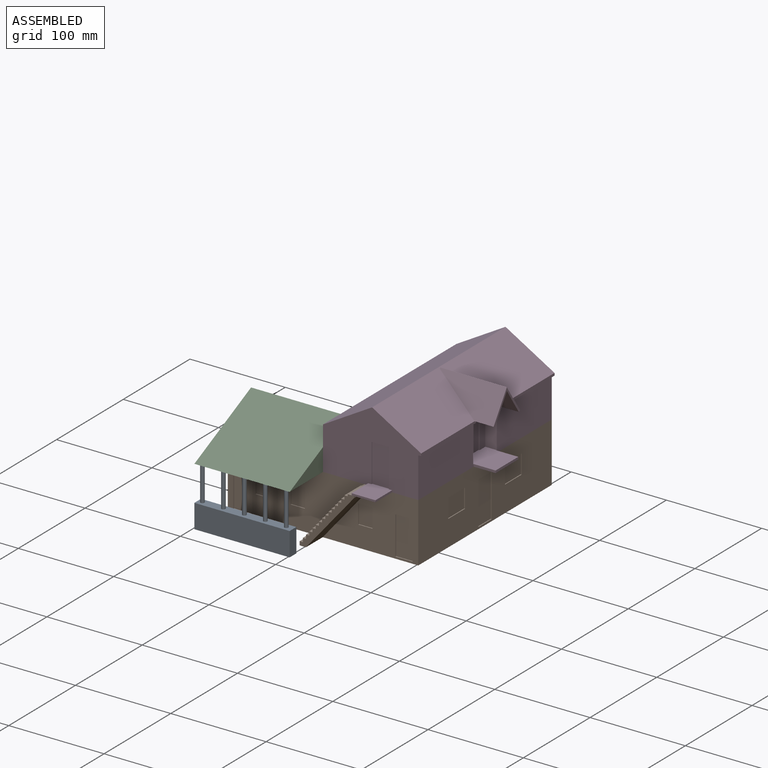
[diagram: assembled view]
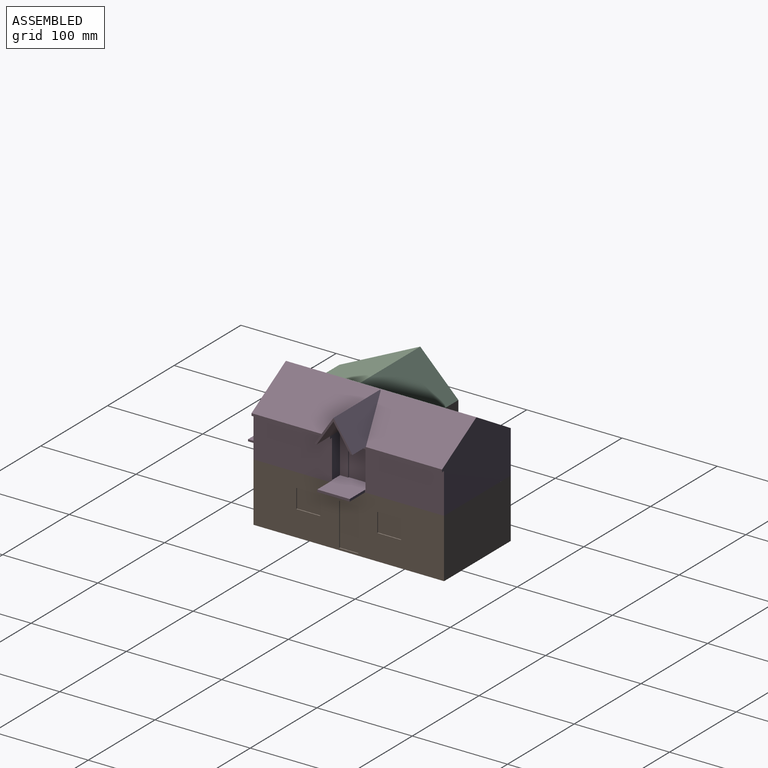
[diagram: assembled view, second angle]
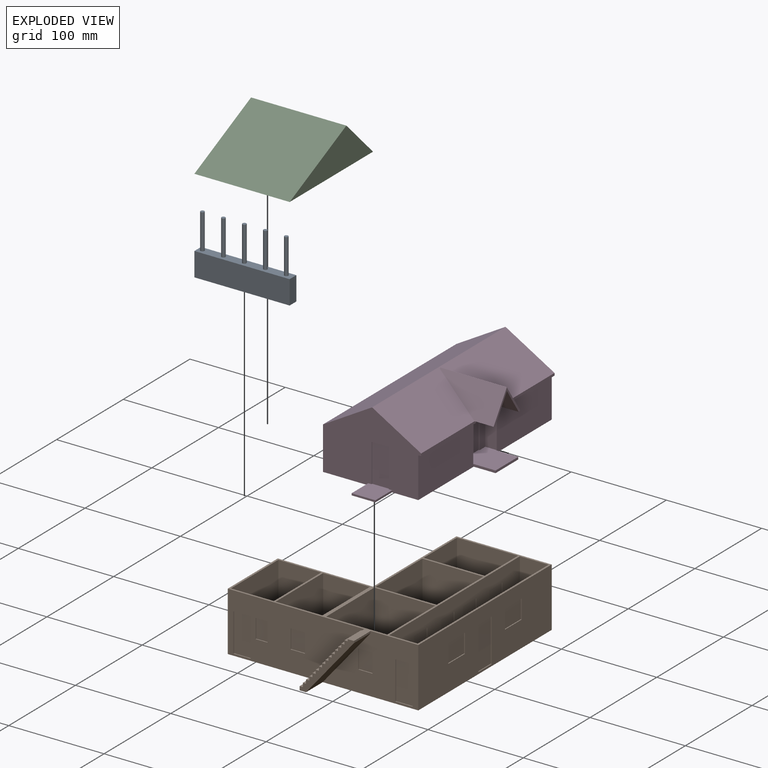
[diagram: exploded view]
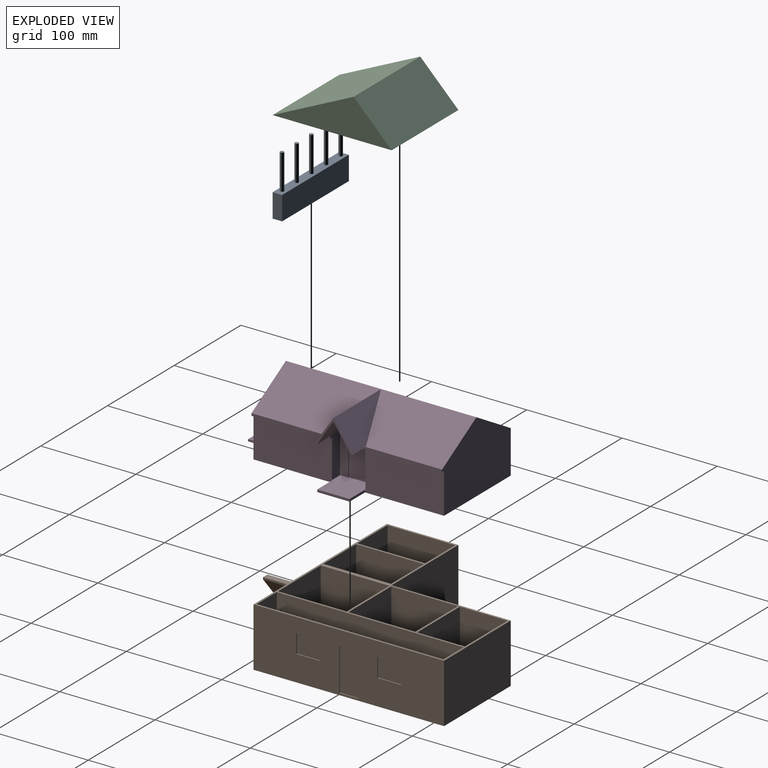
[diagram: exploded view, second angle]
ASSEMBLY  parts=4 mates=3
PART A: 16 faces, bbox 100x10x62 mm
  f0: plane 25x10mm, normal (1,0,0), area 250mm2, adj f1,f3,f4,f5
  f1: plane 100x25mm, normal (0,1,0), area 2500mm2, adj f0,f2,f4,f5
  f2: plane 25x10mm, normal (-1,0,0), area 250mm2, adj f1,f3,f4,f5
  f3: plane 100x25mm, normal (0,-1,0), area 2500mm2, adj f0,f2,f4,f5
  f4: plane 100x10mm, normal (0,0,1), area 937.2mm2, adj f0,f1,f2,f3,f6,f8,f10,f12
  f5: plane 100x10mm, normal (0,0,-1), area 1000mm2, adj f0,f1,f2,f3
  f6: cylinder r=2mm len=37mm, axis (0,0,-1), area 465mm2, adj f4,f7
  f7: plane 4x4mm, normal (0,0,1), area 12.6mm2, adj f6
  f8: cylinder r=2mm len=37mm, axis (0,0,-1), area 465mm2, adj f4,f9
  f9: plane 4x4mm, normal (0,0,1), area 12.6mm2, adj f8
  f10: cylinder r=2mm len=37mm, axis (0,0,-1), area 465mm2, adj f4,f11
  f11: plane 4x4mm, normal (0,0,1), area 12.6mm2, adj f10
  f12: cylinder r=2mm len=37mm, axis (0,0,-1), area 465mm2, adj f4,f13
  f13: plane 4x4mm, normal (0,0,1), area 12.6mm2, adj f12
  f14: cylinder r=2mm len=37mm, axis (0,0,-1), area 465mm2, adj f4,f15
  f15: plane 4x4mm, normal (0,0,1), area 12.6mm2, adj f14
PART B: 149 faces, bbox 200x225x62 mm
  f0: plane 143.32x62mm, normal (0,-1,0), area 6004.9mm2, adj f1,f5,f6,f9,f10,f11,f44,f48
  f1: plane 75x62mm, normal (-1,0,0), area 4250mm2, adj f0,f39,f44,f48,f110,f111,f112,f113
  f2: plane 71x60mm, normal (-1,0,0), area 3360mm2, adj f30,f31,f44,f46,f106,f107,f108
  f3: plane 125x62mm, normal (-1,0,0), area 7600mm2, adj f38,f39,f44,f48,f101,f102,f103,f104
  f4: plane 200x62mm, normal (1,0,0), area 10500mm2, adj f19,f38,f44,f48,f86,f87,f88,f89
  f5: plane 20x1mm, normal (1,0,0), area 20mm2, adj f0,f67,f68,f85
  f6: plane 20x1mm, normal (-1,0,0), area 20mm2, adj f0,f67,f68,f85
  f7: plane 20x1mm, normal (1,0,0), area 20mm2, adj f19,f73,f74,f83
  f8: plane 20x1mm, normal (-1,0,0), area 20mm2, adj f19,f73,f74,f83
  f9: plane 18x1mm, normal (0,0,1), area 18mm2, adj f0,f10,f11,f82
  f10: plane 40x1mm, normal (1,0,0), area 40mm2, adj f0,f9,f75,f82
  f11: plane 40x1mm, normal (-1,0,0), area 40mm2, adj f0,f9,f75,f82
  f12: plane 18x1mm, normal (0,0,1), area 18mm2, adj f13,f14,f19,f81
  f13: plane 40x1mm, normal (1,0,0), area 40mm2, adj f12,f19,f66,f81
  f14: plane 40x1mm, normal (-1,0,0), area 40mm2, adj f12,f19,f66,f81
  f15: plane 64x50mm, normal (0,0,1), area 3200mm2, adj f22,f36,f37,f43
  f16: plane 70x64mm, normal (0,0,1), area 4480mm2, adj f21,f34,f35,f42
  f17: plane 196x31mm, normal (0,0,1), area 5940mm2, adj f23,f24,f25,f26,f49,f51,f52,f54
  f18: plane 64x60mm, normal (0,1,0), area 3840mm2, adj f20,f32,f44,f47
  f19: plane 100.31x62mm, normal (0,-1,0), area 3588.2mm2, adj f4,f7,f8,f12,f13,f14,f44,f48
  f20: plane 72x60mm, normal (-1,0,0), area 4320mm2, adj f18,f33,f44,f47
  f21: plane 70x60mm, normal (-1,0,0), area 4200mm2, adj f16,f35,f42,f44
  f22: plane 60x50mm, normal (-1,0,0), area 3000mm2, adj f15,f37,f43,f44
  f23: plane 196x60mm, normal (1,0,0), area 8260mm2, adj f17,f24,f26,f44,f49,f50,f51,f52
  f24: plane 60x30mm, normal (0,-1,0), area 1800mm2, adj f17,f23,f25,f44
  f25: plane 196x60mm, normal (-1,0,0), area 11760mm2, adj f17,f24,f26,f44
  f26: plane 60x30mm, normal (0,1,0), area 1800mm2, adj f17,f23,f25,f44
  f27: plane 60x49mm, normal (0,-1,0), area 2940mm2, adj f28,f40,f44,f45
  f28: plane 71x60mm, normal (-1,0,0), area 4260mm2, adj f27,f29,f44,f45
  f29: plane 60x49mm, normal (0,1,0), area 2940mm2, adj f28,f40,f44,f45
  f30: plane 60x45mm, normal (0,-1,0), area 2700mm2, adj f2,f41,f44,f46
  f31: plane 60x45mm, normal (0,1,0), area 2700mm2, adj f2,f41,f44,f46
  f32: plane 72x60mm, normal (1,0,0), area 4320mm2, adj f18,f33,f44,f47
  f33: plane 64x60mm, normal (0,-1,0), area 3840mm2, adj f20,f32,f44,f47
  f34: plane 70x60mm, normal (1,0,0), area 4200mm2, adj f16,f35,f42,f44
  f35: plane 64x60mm, normal (0,-1,0), area 3840mm2, adj f16,f21,f34,f44
  f36: plane 60x50mm, normal (1,0,0), area 3000mm2, adj f15,f37,f43,f44
  f37: plane 64x60mm, normal (0,-1,0), area 3840mm2, adj f15,f22,f36,f44
  f38: plane 100x62mm, normal (0,1,0), area 6200mm2, adj f3,f4,f44,f48
  f39: plane 100x62mm, normal (0,1,0), area 6200mm2, adj f1,f3,f44,f48
  f40: plane 71x60mm, normal (1,0,0), area 4260mm2, adj f27,f29,f44,f45
  f41: plane 71x60mm, normal (1,0,0), area 4260mm2, adj f30,f31,f44,f46
  f42: plane 64x60mm, normal (0,1,0), area 3840mm2, adj f16,f21,f34,f44
  f43: plane 64x60mm, normal (0,1,0), area 3840mm2, adj f15,f22,f36,f44
  f44: plane 225x200mm, normal (0,0,1), area 2825.8mm2, adj f0,f1,f2,f3,f4,f18,f19,f20
  f45: plane 71x49mm, normal (0,0,1), area 3479mm2, adj f27,f28,f29,f40
  f46: plane 71x46mm, normal (0,0,1), area 3215mm2, adj f2,f30,f31,f41,f107,f108,f109
  f47: plane 72x64mm, normal (0,0,1), area 4608mm2, adj f18,f20,f32,f33
  f48: plane 225x200mm, normal (0,0,-1), area 27667.8mm2, adj f0,f1,f3,f4,f19,f38,f39,f115
  f49: plane 45x1mm, normal (0,1,0), area 45mm2, adj f17,f23,f50,f77
  f50: plane 20x1mm, normal (0,0,-1), area 20mm2, adj f23,f49,f51,f77
  f51: plane 45x1mm, normal (0,-1,0), area 45mm2, adj f17,f23,f50,f77
  f52: plane 45x1mm, normal (0,1,0), area 45mm2, adj f17,f23,f53,f78
  f53: plane 20x1mm, normal (0,0,-1), area 20mm2, adj f23,f52,f54,f78
  f54: plane 45x1mm, normal (0,-1,0), area 45mm2, adj f17,f23,f53,f78
  f55: plane 20x1mm, normal (0,1,0), area 20mm2, adj f23,f56,f58,f80
  f56: plane 20x1mm, normal (0,0,-1), area 20mm2, adj f23,f55,f57,f80
  f57: plane 20x1mm, normal (0,-1,0), area 20mm2, adj f23,f56,f58,f80
  f58: plane 20x1mm, normal (0,0,1), area 20mm2, adj f23,f55,f57,f80
  f59: plane 45x1mm, normal (0,1,0), area 45mm2, adj f17,f23,f60,f76
  f60: plane 20x1mm, normal (0,0,-1), area 20mm2, adj f23,f59,f61,f76
  f61: plane 45x1mm, normal (0,-1,0), area 45mm2, adj f17,f23,f60,f76
  f62: plane 20x1mm, normal (0,1,0), area 20mm2, adj f23,f63,f65,f79
  f63: plane 20x1mm, normal (0,0,-1), area 20mm2, adj f23,f62,f64,f79
  f64: plane 20x1mm, normal (0,-1,0), area 20mm2, adj f23,f63,f65,f79
  f65: plane 20x1mm, normal (0,0,1), area 20mm2, adj f23,f62,f64,f79
  f66: plane 18x1mm, normal (0,0,-1), area 18mm2, adj f13,f14,f19,f81
  f67: plane 12.5x1mm, normal (0,0,-1), area 12.5mm2, adj f0,f5,f6,f85
  f68: plane 12.5x1mm, normal (0,0,1), area 12.5mm2, adj f0,f5,f6,f85
  f69: plane 20x1mm, normal (1,0,0), area 20mm2, adj f0,f70,f71,f84
  f70: plane 15x1mm, normal (0,0,-1), area 15mm2, adj f0,f69,f72,f84
  f71: plane 15x1mm, normal (0,0,1), area 15mm2, adj f0,f69,f72,f84
  f72: plane 20x1mm, normal (-1,0,0), area 20mm2, adj f0,f70,f71,f84
  f73: plane 15x1mm, normal (0,0,-1), area 15mm2, adj f7,f8,f19,f83
  f74: plane 15x1mm, normal (0,0,1), area 15mm2, adj f7,f8,f19,f83
  f75: plane 18x1mm, normal (0,0,-1), area 18mm2, adj f0,f10,f11,f82
  f76: plane 45x20mm, normal (1,0,0), area 900mm2, adj f17,f59,f60,f61
  f77: plane 45x20mm, normal (1,0,0), area 900mm2, adj f17,f49,f50,f51
  f78: plane 45x20mm, normal (1,0,0), area 900mm2, adj f17,f52,f53,f54
  f79: plane 20x20mm, normal (1,0,0), area 400mm2, adj f62,f63,f64,f65
  f80: plane 20x20mm, normal (1,0,0), area 400mm2, adj f55,f56,f57,f58
  f81: plane 40x18mm, normal (0,-1,0), area 720mm2, adj f12,f13,f14,f66
  f82: plane 40x18mm, normal (0,-1,0), area 720mm2, adj f9,f10,f11,f75
  f83: plane 20x15mm, normal (0,-1,0), area 300mm2, adj f7,f8,f73,f74
  f84: plane 20x15mm, normal (0,-1,0), area 300mm2, adj f69,f70,f71,f72
  f85: plane 20x12.5mm, normal (0,-1,0), area 250mm2, adj f5,f6,f67,f68
  f86: plane 20x1mm, normal (0,0,1), area 20mm2, adj f4,f87,f89,f90
  f87: plane 45x1mm, normal (0,-1,0), area 45mm2, adj f4,f86,f88,f90
  f88: plane 20x1mm, normal (0,0,-1), area 20mm2, adj f4,f87,f89,f90
  f89: plane 45x1mm, normal (0,1,0), area 45mm2, adj f4,f86,f88,f90
  f90: plane 45x20mm, normal (1,0,0), area 900mm2, adj f86,f87,f88,f89
  f91: plane 20x1mm, normal (0,-1,0), area 20mm2, adj f4,f92,f94,f95
  f92: plane 25x1mm, normal (0,0,-1), area 25mm2, adj f4,f91,f93,f95
  f93: plane 20x1mm, normal (0,1,0), area 20mm2, adj f4,f92,f94,f95
  f94: plane 25x1mm, normal (0,0,1), area 25mm2, adj f4,f91,f93,f95
  f95: plane 25x20mm, normal (1,0,0), area 500mm2, adj f91,f92,f93,f94
  f96: plane 25x1mm, normal (0,0,-1), area 25mm2, adj f4,f97,f99,f100
  f97: plane 20x1mm, normal (0,1,0), area 20mm2, adj f4,f96,f98,f100
  f98: plane 25x1mm, normal (0,0,1), area 25mm2, adj f4,f97,f99,f100
  f99: plane 20x1mm, normal (0,-1,0), area 20mm2, adj f4,f96,f98,f100
  f100: plane 25x20mm, normal (1,0,0), area 500mm2, adj f96,f97,f98,f99
  f101: plane 15x1mm, normal (0,0,-1), area 15mm2, adj f3,f102,f104,f105
  f102: plane 10x1mm, normal (0,-1,0), area 10mm2, adj f3,f101,f103,f105
  f103: plane 15x1mm, normal (0,0,1), area 15mm2, adj f3,f102,f104,f105
  f104: plane 10x1mm, normal (0,1,0), area 10mm2, adj f3,f101,f103,f105
  f105: plane 15x10mm, normal (-1,0,0), area 150mm2, adj f101,f102,f103,f104
  f106: plane 20x1mm, normal (0,0,-1), area 20mm2, adj f2,f107,f108,f109
  f107: plane 45x1mm, normal (0,-1,0), area 45mm2, adj f2,f46,f106,f109
  f108: plane 45x1mm, normal (0,1,0), area 45mm2, adj f2,f46,f106,f109
  f109: plane 45x20mm, normal (-1,0,0), area 900mm2, adj f46,f106,f107,f108
  f110: plane 20x1mm, normal (0,1,0), area 20mm2, adj f1,f111,f113,f114
  f111: plane 20x1mm, normal (0,0,-1), area 20mm2, adj f1,f110,f112,f114
  f112: plane 20x1mm, normal (0,-1,0), area 20mm2, adj f1,f111,f113,f114
  f113: plane 20x1mm, normal (0,0,1), area 20mm2, adj f1,f110,f112,f114
  f114: plane 20x20mm, normal (-1,0,0), area 400mm2, adj f110,f111,f112,f113
  f115: plane 60x50.35mm, normal (0.77,0,-0.64), area 1958.1mm2, adj f19,f48,f116,f148
  f116: plane 25x2mm, normal (1,0,0), area 50mm2, adj f19,f44,f115,f148
  f117: plane 25x2mm, normal (-1,0,0), area 50mm2, adj f0,f44,f118,f148
  f118: plane 25x3.36mm, normal (0,0,1), area 83.9mm2, adj f0,f117,f119,f148
  f119: plane 25x4mm, normal (-1,0,0), area 100mm2, adj f0,f118,f120,f148
  f120: plane 25x3.36mm, normal (0,0,1), area 83.9mm2, adj f0,f119,f121,f148
  f121: plane 25x4mm, normal (-1,0,0), area 100mm2, adj f0,f120,f122,f148
  f122: plane 25x3.36mm, normal (0,0,1), area 83.9mm2, adj f0,f121,f123,f148
  f123: plane 25x4mm, normal (-1,0,0), area 100mm2, adj f0,f122,f124,f148
  f124: plane 25x3.36mm, normal (0,0,1), area 83.9mm2, adj f0,f123,f125,f148
  f125: plane 25x4mm, normal (-1,0,0), area 100mm2, adj f0,f124,f126,f148
  f126: plane 25x3.36mm, normal (0,0,1), area 83.9mm2, adj f0,f125,f127,f148
  f127: plane 25x4mm, normal (-1,0,0), area 100mm2, adj f0,f126,f128,f148
  f128: plane 25x3.36mm, normal (0,0,1), area 83.9mm2, adj f0,f127,f129,f148
  f129: plane 25x4mm, normal (-1,0,0), area 100mm2, adj f0,f128,f130,f148
  f130: plane 25x3.36mm, normal (0,0,1), area 83.9mm2, adj f0,f129,f131,f148
  f131: plane 25x4mm, normal (-1,0,0), area 100mm2, adj f0,f130,f132,f148
  f132: plane 25x3.36mm, normal (0,0,1), area 83.9mm2, adj f0,f131,f133,f148
  f133: plane 25x4mm, normal (-1,0,0), area 100mm2, adj f0,f132,f134,f148
  f134: plane 25x3.36mm, normal (0,0,1), area 83.9mm2, adj f0,f133,f135,f148
  f135: plane 25x4mm, normal (-1,0,0), area 100mm2, adj f0,f134,f136,f148
  f136: plane 25x3.36mm, normal (0,0,1), area 83.9mm2, adj f0,f135,f137,f148
  f137: plane 25x4mm, normal (-1,0,0), area 100mm2, adj f0,f136,f138,f148
  f138: plane 25x3.36mm, normal (0,0,1), area 83.9mm2, adj f0,f137,f139,f148
  f139: plane 25x4mm, normal (-1,0,0), area 100mm2, adj f0,f138,f140,f148
  f140: plane 25x3.36mm, normal (0,0,1), area 83.9mm2, adj f0,f139,f141,f148
  f141: plane 25x4mm, normal (-1,0,0), area 100mm2, adj f0,f140,f142,f148
  f142: plane 25x3.36mm, normal (0,0,1), area 83.9mm2, adj f0,f141,f143,f148
  f143: plane 25x4mm, normal (-1,0,0), area 100mm2, adj f0,f142,f144,f148
  f144: plane 25x3.36mm, normal (0,0,1), area 83.9mm2, adj f0,f143,f145,f148
  f145: plane 25x4mm, normal (-1,0,0), area 100mm2, adj f0,f144,f146,f148
  f146: plane 25x3.36mm, normal (0,0,1), area 83.9mm2, adj f0,f145,f147,f148
  f147: plane 25x4mm, normal (-1,0,0), area 100mm2, adj f0,f48,f146,f148
  f148: plane 62x57.06mm, normal (0,-1,0), area 516.9mm2, adj f44,f48,f115,f116,f117,f118,f119,f120
PART C: 9 faces, bbox 100x125x40 mm
  f0: plane 125x40mm, normal (1,0,0), area 2500mm2, adj f2,f3,f4
  f1: plane 125x40mm, normal (-1,0,0), area 2087.5mm2, adj f2,f3,f4,f5,f6,f7
  f2: plane 125x100mm, normal (0,0,-1), area 12485mm2, adj f0,f1,f3,f4,f5,f6,f8
  f3: plane 100x40mm, normal (0,0.71,0.71), area 5656.9mm2, adj f0,f1,f2,f4
  f4: plane 100x85mm, normal (0,-0.43,0.9), area 9394.1mm2, adj f0,f1,f2,f3
  f5: plane 27.5x1mm, normal (0,-1,0), area 27.5mm2, adj f1,f2,f7,f8
  f6: plane 27.5x1mm, normal (0,1,0), area 27.5mm2, adj f1,f2,f7,f8
  f7: plane 15x1mm, normal (0,0,-1), area 15mm2, adj f1,f5,f6,f8
  f8: plane 27.5x15mm, normal (-1,0,0), area 412.5mm2, adj f2,f5,f6,f7
PART D: 39 faces, bbox 225x123x75 mm
  f0: plane 68.89x35.19mm, normal (0,-1,0), area 1240.1mm2, adj f6,f7,f15,f16,f20,f35,f36,f37
  f1: plane 103x75mm, normal (1,0,0), area 6052.5mm2, adj f2,f5,f8,f9,f11,f22,f23
  f2: plane 225x123mm, normal (0,0,-1), area 21407mm2, adj f1,f3,f9,f10,f21,f22,f24,f25
  f3: plane 34x2.5mm, normal (0,-1,0), area 85mm2, adj f2,f6,f21,f24
  f4: plane 82.4x2.5mm, normal (0,-1,0), area 206mm2, adj f8,f10,f14,f20,f26
  f5: plane 82.4x2.5mm, normal (0,-1,0), area 206mm2, adj f1,f7,f8,f17,f23
  f6: plane 36x35.19mm, normal (0,0,1), area 1222.3mm2, adj f0,f3,f7,f20,f21,f22,f24,f25
  f7: plane 42.5x15mm, normal (-1,0,0), area 517.5mm2, adj f0,f5,f6,f16,f22,f23
  f8: plane 200x51.5mm, normal (0,-0.5,0.86), area 10729.1mm2, adj f1,f4,f5,f10,f11,f12,f13,f18
  f9: plane 200x45mm, normal (0,1,0), area 9000mm2, adj f1,f2,f10,f11
  f10: plane 103x75mm, normal (-1,0,0), area 5282.5mm2, adj f2,f4,f8,f9,f11,f25,f26,f27
  f11: plane 200x51.5mm, normal (0,0.5,0.86), area 11920.2mm2, adj f1,f8,f9,f10
  f12: plane 70x30mm, normal (0.83,0,0.55), area 1648.8mm2, adj f8,f13,f17,f18,f19
  f13: plane 70x30mm, normal (-0.83,0,0.55), area 1648.8mm2, adj f8,f12,f14,f18,f19
  f14: plane 20x2.4mm, normal (0,0,-1), area 48.1mm2, adj f4,f13,f15,f19
  f15: plane 35x26.39mm, normal (0.83,0,-0.55), area 1110.3mm2, adj f0,f14,f16,f19,f20
  f16: plane 35x26.39mm, normal (-0.83,0,-0.55), area 1110.3mm2, adj f0,f7,f15,f17,f19
  f17: plane 20x2.4mm, normal (0,0,-1), area 48.1mm2, adj f5,f12,f16,f19
  f18: plane 1.17x0.87mm, normal (0,1,0), area 0.5mm2, adj f8,f12,f13
  f19: plane 40x30mm, normal (0,-1,0), area 135.6mm2, adj f12,f13,f14,f15,f16,f17
  f20: plane 42.5x15mm, normal (1,0,0), area 517.5mm2, adj f0,f4,f6,f15,f25,f26
  f21: plane 23x2.5mm, normal (1,0,0), area 57.5mm2, adj f2,f3,f6,f22
  f22: plane 83x42.5mm, normal (0,-1,0), area 3503.6mm2, adj f1,f2,f6,f7,f21,f23
  f23: plane 82.4x3mm, normal (0,0,-1), area 247.2mm2, adj f1,f5,f7,f22
  f24: plane 23x2.5mm, normal (-1,0,0), area 57.5mm2, adj f2,f3,f6,f25
  f25: plane 83x42.5mm, normal (0,-1,0), area 3503.6mm2, adj f2,f6,f10,f20,f24,f26
  f26: plane 82.4x3mm, normal (0,0,-1), area 247.2mm2, adj f4,f10,f20,f25
  f27: plane 25x2mm, normal (0,1,0), area 50mm2, adj f2,f10,f29,f30
  f28: plane 25x2mm, normal (0,-1,0), area 50mm2, adj f2,f10,f29,f30
  f29: plane 26x25mm, normal (0,0,1), area 643mm2, adj f10,f27,f28,f30,f31,f32,f34
  f30: plane 25x2mm, normal (-1,0,0), area 50mm2, adj f2,f27,f28,f29
  f31: plane 40x1mm, normal (0,-1,0), area 40mm2, adj f10,f29,f33,f34
  f32: plane 40x1mm, normal (0,1,0), area 40mm2, adj f10,f29,f33,f34
  f33: plane 18x1mm, normal (0,0,-1), area 18mm2, adj f10,f31,f32,f34
  f34: plane 40x18mm, normal (-1,0,0), area 720mm2, adj f29,f31,f32,f33
  f35: plane 40x1mm, normal (1,0,0), area 40mm2, adj f0,f6,f37,f38
  f36: plane 40x1mm, normal (-1,0,0), area 40mm2, adj f0,f6,f37,f38
  f37: plane 18x1mm, normal (0,0,-1), area 18mm2, adj f0,f35,f36,f38
  f38: plane 40x18mm, normal (0,-1,0), area 720mm2, adj f6,f35,f36,f37
PLACE A t=(-72.57,-127.38,0)mm
PLACE B t=(-22.57,-7.38,2)mm
PLACE C t=(-22.57,-69.88,62)mm
PLACE D rot(axis=(0,0,1),90deg) t=(28.93,17.62,62)mm
MATE fastened C.f2 <-> B.f44  axis (0,0,-1) through (-122.57,-7.38,62)mm
MATE fastened A.f6 <-> C.f2  axis (0,0,1) through (-117.57,-127.38,62)mm
MATE fastened D.f2 <-> B.f44  axis (0,0,-1) through (77.43,-82.38,62)mm
